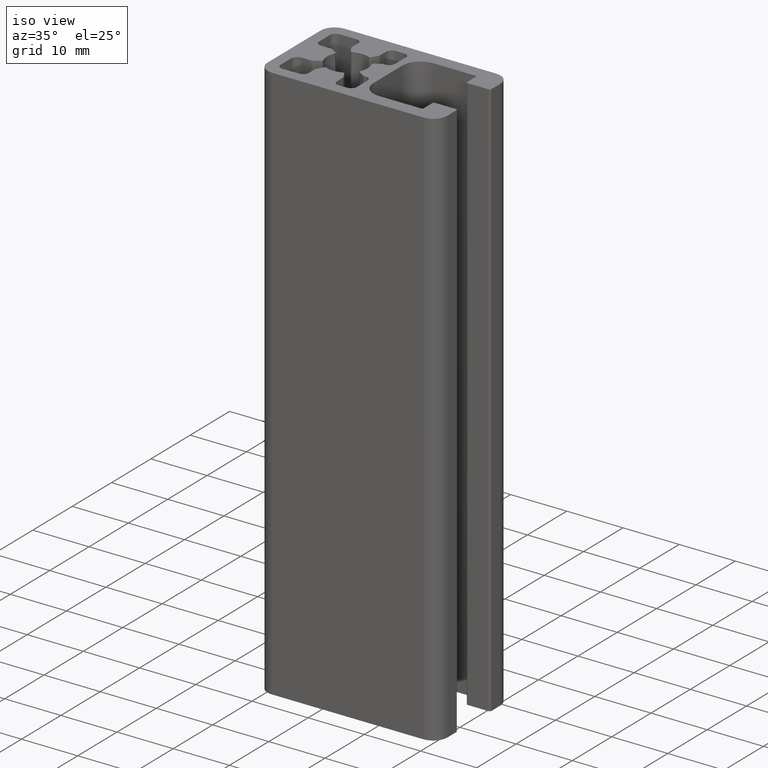
[diagram: clean part render]
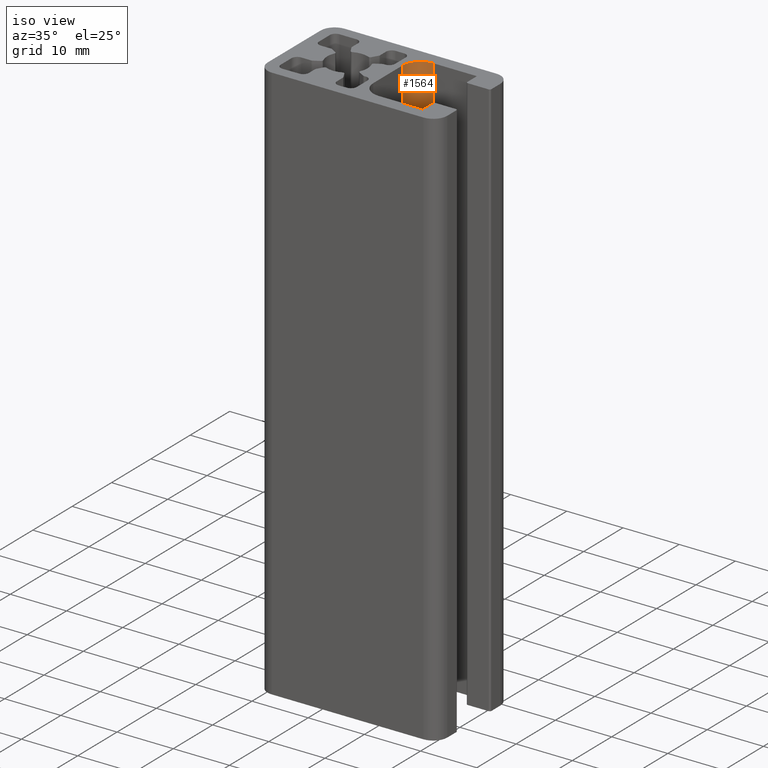
[diagram: same view with one face highlighted and labeled with its STEP entity id]
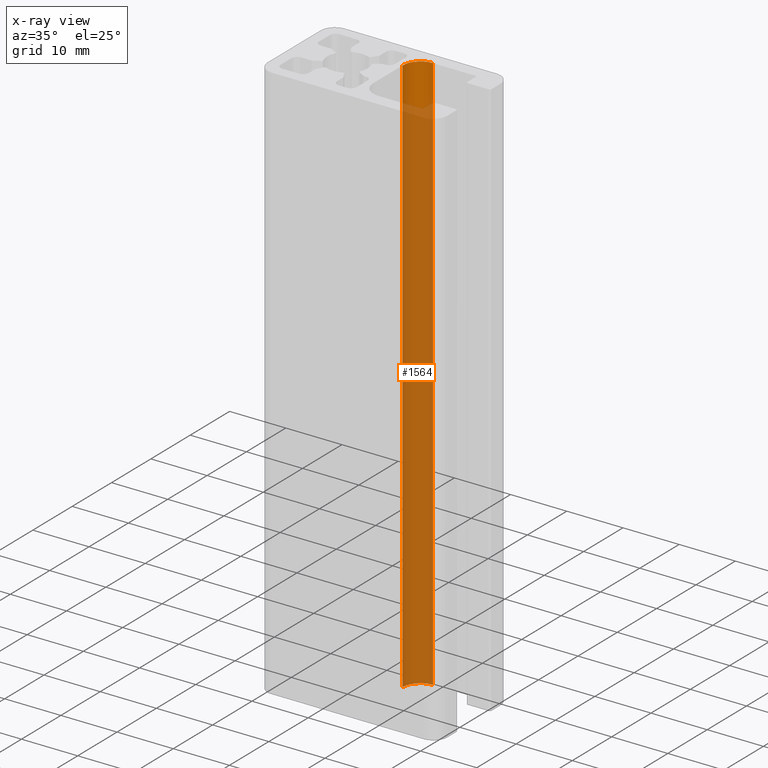
[diagram: x-ray of the same camera — body ghosted, the highlighted face saturated]
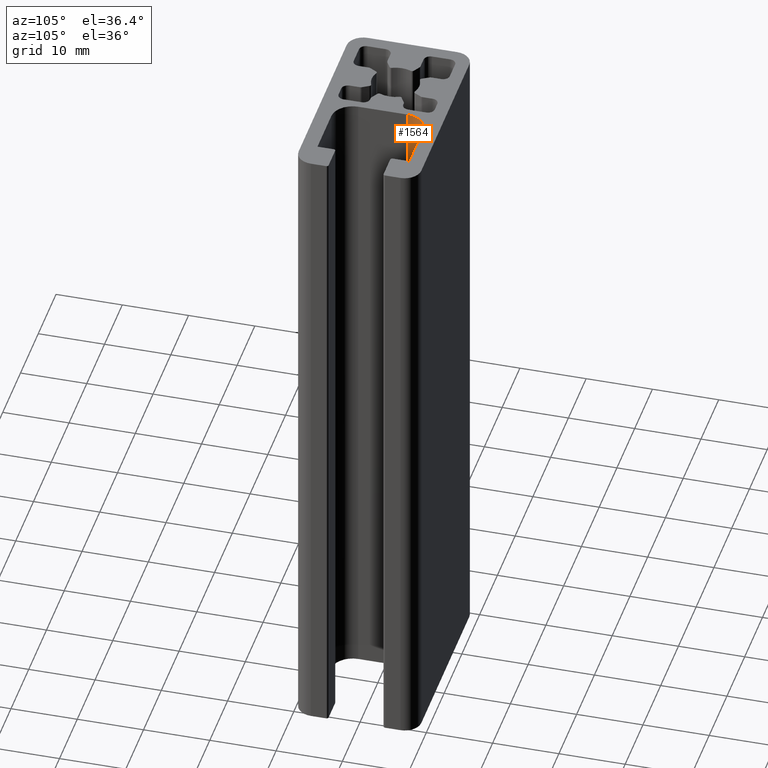
[diagram: same view with one face highlighted and labeled with its STEP entity id]
A machine part, iso view. The second image highlights one B-rep face of the part: STEP entity #1564.
The next image is the same camera in x-ray: the body ghosted, the highlighted face saturated — about 93% of this face is hidden behind the body in this view.
A second angle (auxiliary view) of the same face is appended — the face is thin or edge-on in the first view.
In plain terms, the highlighted cylindrical surface (edge-blend (fillet) strip) has radius 3.2 mm, axis along (0, 0, 1).
Its self-contained STEP definition (entity closure, byte-faithful):
#76=CIRCLE('',#1695,3.19999999999359);
#94=CIRCLE('',#1724,3.19999999999359);
#136=CYLINDRICAL_SURFACE('',#1723,3.19999999999359);
#206=FACE_OUTER_BOUND('',#287,.T.);
#287=EDGE_LOOP('',(#1321,#1322,#1323,#1324));
#430=LINE('',#2635,#580);
#432=LINE('',#2639,#582);
#580=VECTOR('',#2154,100.);
#582=VECTOR('',#2158,100.);
#724=VERTEX_POINT('',#2566);
#725=VERTEX_POINT('',#2568);
#746=VERTEX_POINT('',#2634);
#747=VERTEX_POINT('',#2638);
#928=EDGE_CURVE('',#724,#725,#76,.T.);
#963=EDGE_CURVE('',#746,#725,#430,.T.);
#965=EDGE_CURVE('',#747,#724,#432,.T.);
#966=EDGE_CURVE('',#746,#747,#94,.T.);
#1321=ORIENTED_EDGE('',*,*,#928,.F.);
#1322=ORIENTED_EDGE('',*,*,#965,.F.);
#1323=ORIENTED_EDGE('',*,*,#966,.F.);
#1324=ORIENTED_EDGE('',*,*,#963,.T.);
#1564=ADVANCED_FACE('',(#206),#136,.F.);
#1695=AXIS2_PLACEMENT_3D('',#2569,#2081,#2082);
#1723=AXIS2_PLACEMENT_3D('',#2637,#2156,#2157);
#1724=AXIS2_PLACEMENT_3D('',#2640,#2159,#2160);
#2081=DIRECTION('center_axis',(0.,0.,-1.));
#2082=DIRECTION('ref_axis',(-2.00117700189085E-12,1.,0.));
#2154=DIRECTION('',(0.,0.,1.));
#2156=DIRECTION('center_axis',(0.,0.,1.));
#2157=DIRECTION('ref_axis',(-2.00117700189085E-12,1.,0.));
#2158=DIRECTION('',(0.,0.,1.));
#2159=DIRECTION('center_axis',(0.,0.,1.));
#2160=DIRECTION('ref_axis',(-2.00117700189085E-12,1.,0.));
#2566=CARTESIAN_POINT('',(7.20000000001281,3.7,100.));
#2568=CARTESIAN_POINT('',(10.4,6.9,100.));
#2569=CARTESIAN_POINT('Origin',(10.4000000000064,3.7000000000064,100.));
#2634=CARTESIAN_POINT('',(10.4,6.9,0.));
#2635=CARTESIAN_POINT('',(10.4,6.9,0.));
#2637=CARTESIAN_POINT('Origin',(10.4000000000064,3.7000000000064,0.));
#2638=CARTESIAN_POINT('',(7.20000000001281,3.7,0.));
#2639=CARTESIAN_POINT('',(7.20000000001281,3.7,0.));
#2640=CARTESIAN_POINT('Origin',(10.4000000000064,3.7000000000064,0.));